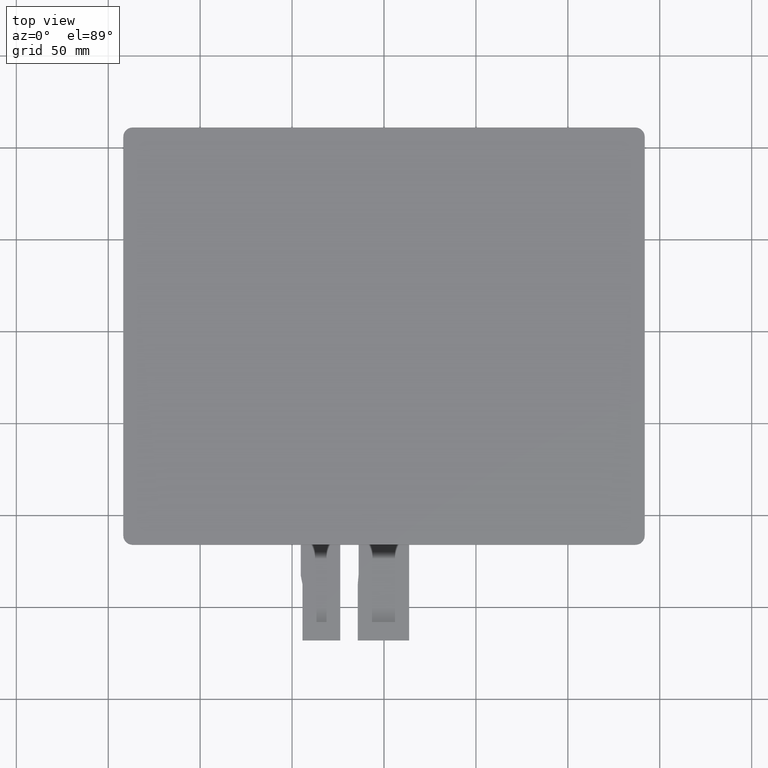
[diagram: clean part render]
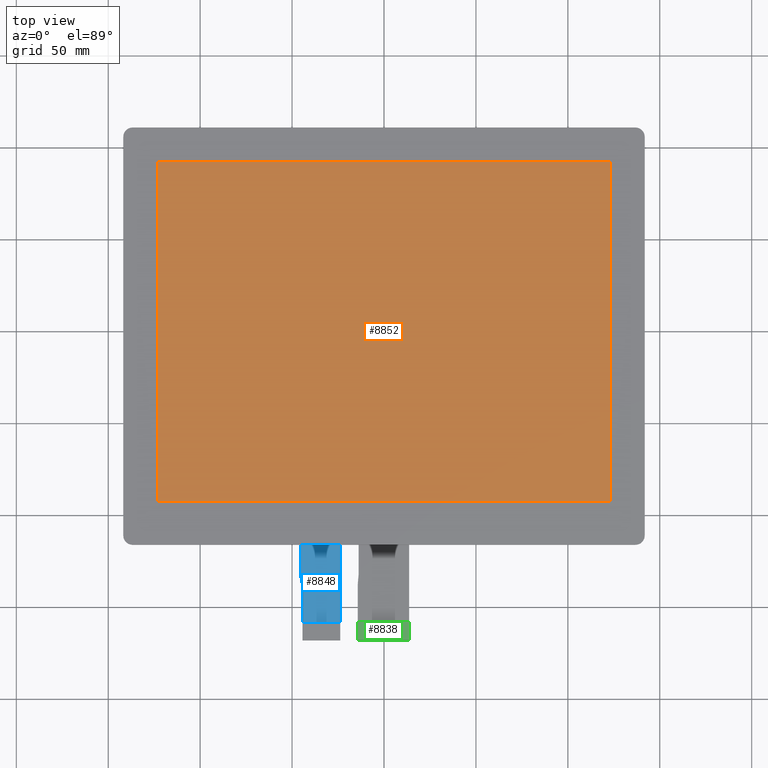
[diagram: same view with three faces highlighted in distinct colors, each labeled with its STEP entity id]
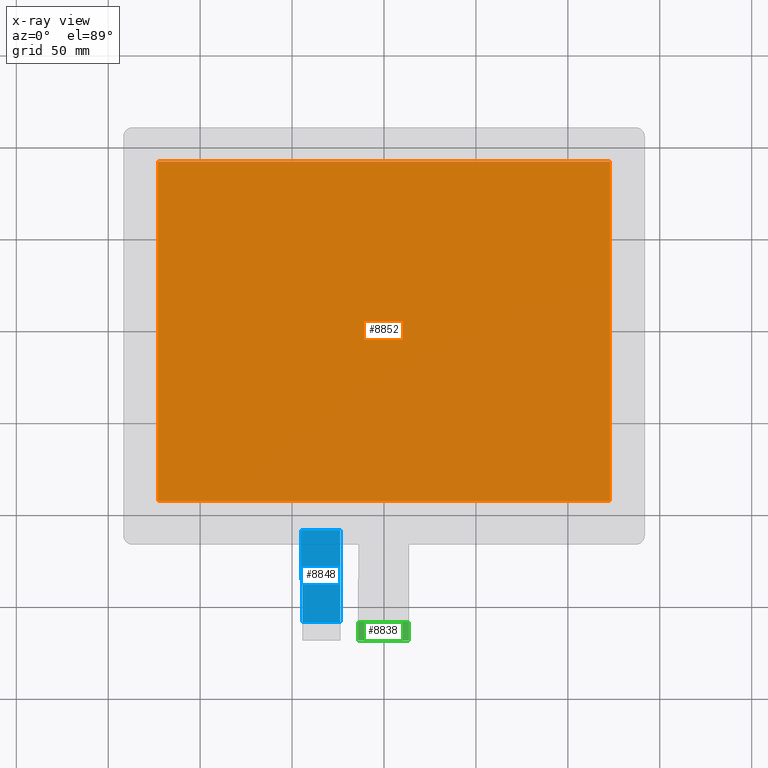
[diagram: x-ray of the same camera — body ghosted, the three highlighted faces saturated]
A machine part, top view with three faces highlighted in distinct colors.
The next image is the same camera in x-ray (body ghosted, the three faces saturated) — at least one of them is partly hidden behind the body in this view.
Their STEP definitions:

[orange] entity #8852 — the highlighted planar face has unit normal (0, 0, 1).
#485=FACE_OUTER_BOUND('',#912,.T.);
#912=EDGE_LOOP('',(#7981,#7982,#7983,#7984));
#940=LINE('',#11488,#2185);
#941=LINE('',#11490,#2186);
#942=LINE('',#11492,#2187);
#943=LINE('',#11493,#2188);
#2185=VECTOR('',#9365,10.);
#2186=VECTOR('',#9366,10.);
#2187=VECTOR('',#9367,10.);
#2188=VECTOR('',#9368,10.);
#3429=VERTEX_POINT('',#11486);
#3430=VERTEX_POINT('',#11487);
#3431=VERTEX_POINT('',#11489);
#3432=VERTEX_POINT('',#11491);
#4273=EDGE_CURVE('',#3429,#3430,#940,.T.);
#4274=EDGE_CURVE('',#3431,#3429,#941,.T.);
#4275=EDGE_CURVE('',#3432,#3431,#942,.T.);
#4276=EDGE_CURVE('',#3430,#3432,#943,.T.);
#7981=ORIENTED_EDGE('',*,*,#4273,.T.);
#7982=ORIENTED_EDGE('',*,*,#4276,.T.);
#7983=ORIENTED_EDGE('',*,*,#4275,.T.);
#7984=ORIENTED_EDGE('',*,*,#4274,.T.);
#8427=PLANE('',#9309);
#8852=ADVANCED_FACE('',(#485),#8427,.T.);
#9309=AXIS2_PLACEMENT_3D('',#13933,#11412,#11413);
#9365=DIRECTION('',(0.,1.,0.));
#9366=DIRECTION('',(1.,0.,0.));
#9367=DIRECTION('',(0.,-1.,0.));
#9368=DIRECTION('',(-1.,0.,0.));
#11412=DIRECTION('center_axis',(0.,0.,1.));
#11413=DIRECTION('ref_axis',(1.,0.,0.));
#11486=CARTESIAN_POINT('',(123.,-92.25,1.8));
#11487=CARTESIAN_POINT('',(123.,92.25,1.8));
#11488=CARTESIAN_POINT('',(123.,-47.4,1.8));
#11489=CARTESIAN_POINT('',(-123.,-92.25,1.8));
#11490=CARTESIAN_POINT('',(-61.5,-92.25,1.8));
#11491=CARTESIAN_POINT('',(-123.,92.25,1.8));
#11492=CARTESIAN_POINT('',(-123.,44.85,1.8));
#11493=CARTESIAN_POINT('',(61.5,92.25,1.8));
#13933=CARTESIAN_POINT('Origin',(0.,-2.54999999999997,1.8));

[blue] entity #8848 — the highlighted planar face has unit normal (0, 0, 1).
#481=FACE_OUTER_BOUND('',#908,.T.);
#908=EDGE_LOOP('',(#7961,#7962,#7963,#7964,#7965,#7966));
#2120=LINE('',#13859,#3365);
#2134=LINE('',#13887,#3379);
#2148=LINE('',#13914,#3393);
#2149=LINE('',#13918,#3394);
#2153=LINE('',#13925,#3398);
#2155=LINE('',#13928,#3400);
#3365=VECTOR('',#11339,10.);
#3379=VECTOR('',#11365,10.);
#3393=VECTOR('',#11391,10.);
#3394=VECTOR('',#11394,10.);
#3398=VECTOR('',#11400,10.);
#3400=VECTOR('',#11404,10.);
#4223=VERTEX_POINT('',#13856);
#4224=VERTEX_POINT('',#13858);
#4232=VERTEX_POINT('',#13886);
#4239=VERTEX_POINT('',#13912);
#4240=VERTEX_POINT('',#13916);
#4241=VERTEX_POINT('',#13917);
#5458=EDGE_CURVE('',#4224,#4223,#2120,.T.);
#5472=EDGE_CURVE('',#4223,#4232,#2134,.T.);
#5486=EDGE_CURVE('',#4232,#4239,#2148,.T.);
#5487=EDGE_CURVE('',#4240,#4241,#2149,.T.);
#5491=EDGE_CURVE('',#4241,#4224,#2153,.T.);
#5493=EDGE_CURVE('',#4240,#4239,#2155,.T.);
#7961=ORIENTED_EDGE('',*,*,#5472,.T.);
#7962=ORIENTED_EDGE('',*,*,#5486,.T.);
#7963=ORIENTED_EDGE('',*,*,#5493,.F.);
#7964=ORIENTED_EDGE('',*,*,#5487,.T.);
#7965=ORIENTED_EDGE('',*,*,#5491,.T.);
#7966=ORIENTED_EDGE('',*,*,#5458,.T.);
#8423=PLANE('',#9305);
#8848=ADVANCED_FACE('',(#481),#8423,.T.);
#9305=AXIS2_PLACEMENT_3D('',#13927,#11402,#11403);
#11339=DIRECTION('',(0.,-1.,0.));
#11365=DIRECTION('',(1.,0.,0.));
#11391=DIRECTION('',(-5.18104078158406E-16,1.,0.));
#11394=DIRECTION('',(0.,-1.,0.));
#11400=DIRECTION('',(0.190808995376547,-0.981627183447664,0.));
#11402=DIRECTION('center_axis',(0.,0.,1.));
#11403=DIRECTION('ref_axis',(1.,0.,0.));
#11404=DIRECTION('',(1.,2.0034099692484E-16,0.));
#13856=CARTESIAN_POINT('',(-44.3,-158.05,-1.25));
#13858=CARTESIAN_POINT('',(-44.3,-137.78,-1.25));
#13859=CARTESIAN_POINT('',(-44.3,-137.78,-1.25));
#13886=CARTESIAN_POINT('',(-23.8,-158.05,-1.25));
#13887=CARTESIAN_POINT('',(-29.175,-158.05,-1.25));
#13912=CARTESIAN_POINT('',(-23.8,-108.05,-1.25));
#13914=CARTESIAN_POINT('',(-23.8,-168.05,-1.25));
#13916=CARTESIAN_POINT('',(-45.3,-108.05,-1.25));
#13917=CARTESIAN_POINT('',(-45.3,-132.63544598403,-1.25));
#13918=CARTESIAN_POINT('',(-45.3,-108.05,-1.25));
#13925=CARTESIAN_POINT('',(-45.3,-132.63544598403,-1.25));
#13927=CARTESIAN_POINT('Origin',(-34.55,-138.05,-1.25));
#13928=CARTESIAN_POINT('',(48.825,-108.05,-1.25));

[green] entity #8838 — the highlighted planar face has unit normal (0, 0, 1).
#58=CIRCLE('',#8903,0.2);
#471=FACE_OUTER_BOUND('',#898,.T.);
#898=EDGE_LOOP('',(#7912,#7913,#7914,#7915,#7916));
#964=LINE('',#11545,#2209);
#2126=LINE('',#13871,#3371);
#2131=LINE('',#13880,#3376);
#2133=LINE('',#13883,#3378);
#2209=VECTOR('',#9413,10.);
#3371=VECTOR('',#11349,10.);
#3376=VECTOR('',#11356,10.);
#3378=VECTOR('',#11360,10.);
#3442=VERTEX_POINT('',#11524);
#3443=VERTEX_POINT('',#11525);
#3451=VERTEX_POINT('',#11543);
#4227=VERTEX_POINT('',#13868);
#4228=VERTEX_POINT('',#13870);
#4292=EDGE_CURVE('',#3442,#3443,#58,.T.);
#4302=EDGE_CURVE('',#3442,#3451,#964,.T.);
#5464=EDGE_CURVE('',#4228,#4227,#2126,.T.);
#5469=EDGE_CURVE('',#4227,#3443,#2131,.T.);
#5471=EDGE_CURVE('',#3451,#4228,#2133,.T.);
#7912=ORIENTED_EDGE('',*,*,#4292,.F.);
#7913=ORIENTED_EDGE('',*,*,#4302,.T.);
#7914=ORIENTED_EDGE('',*,*,#5471,.T.);
#7915=ORIENTED_EDGE('',*,*,#5464,.T.);
#7916=ORIENTED_EDGE('',*,*,#5469,.T.);
#8413=PLANE('',#9295);
#8838=ADVANCED_FACE('',(#471),#8413,.T.);
#8903=AXIS2_PLACEMENT_3D('',#11526,#9399,#9400);
#9295=AXIS2_PLACEMENT_3D('',#13884,#11361,#11362);
#9399=DIRECTION('center_axis',(0.,0.,-1.));
#9400=DIRECTION('ref_axis',(0.707106781186493,-0.707106781186602,0.));
#9413=DIRECTION('',(-2.22044604925031E-16,1.,0.));
#11349=DIRECTION('',(2.22044604925031E-16,-1.,0.));
#11356=DIRECTION('',(1.,0.,0.));
#11360=DIRECTION('',(-1.,0.,0.));
#11361=DIRECTION('center_axis',(0.,0.,1.));
#11362=DIRECTION('ref_axis',(1.,0.,0.));
#11524=CARTESIAN_POINT('',(13.7,-167.85,-0.95));
#11525=CARTESIAN_POINT('',(13.5,-168.05,-0.95));
#11526=CARTESIAN_POINT('Origin',(13.5,-167.85,-0.95));
#11543=CARTESIAN_POINT('',(13.7,-158.05,-0.95));
#11545=CARTESIAN_POINT('',(13.7,-168.05,-0.95));
#13868=CARTESIAN_POINT('',(-14.3,-168.05,-0.95));
#13870=CARTESIAN_POINT('',(-14.3,-158.05,-0.95));
#13871=CARTESIAN_POINT('',(-14.3,-158.05,-0.95));
#13880=CARTESIAN_POINT('',(-14.3,-168.05,-0.95));
#13883=CARTESIAN_POINT('',(13.7,-158.05,-0.95));
#13884=CARTESIAN_POINT('Origin',(-0.299999999999978,-163.05,-0.95));